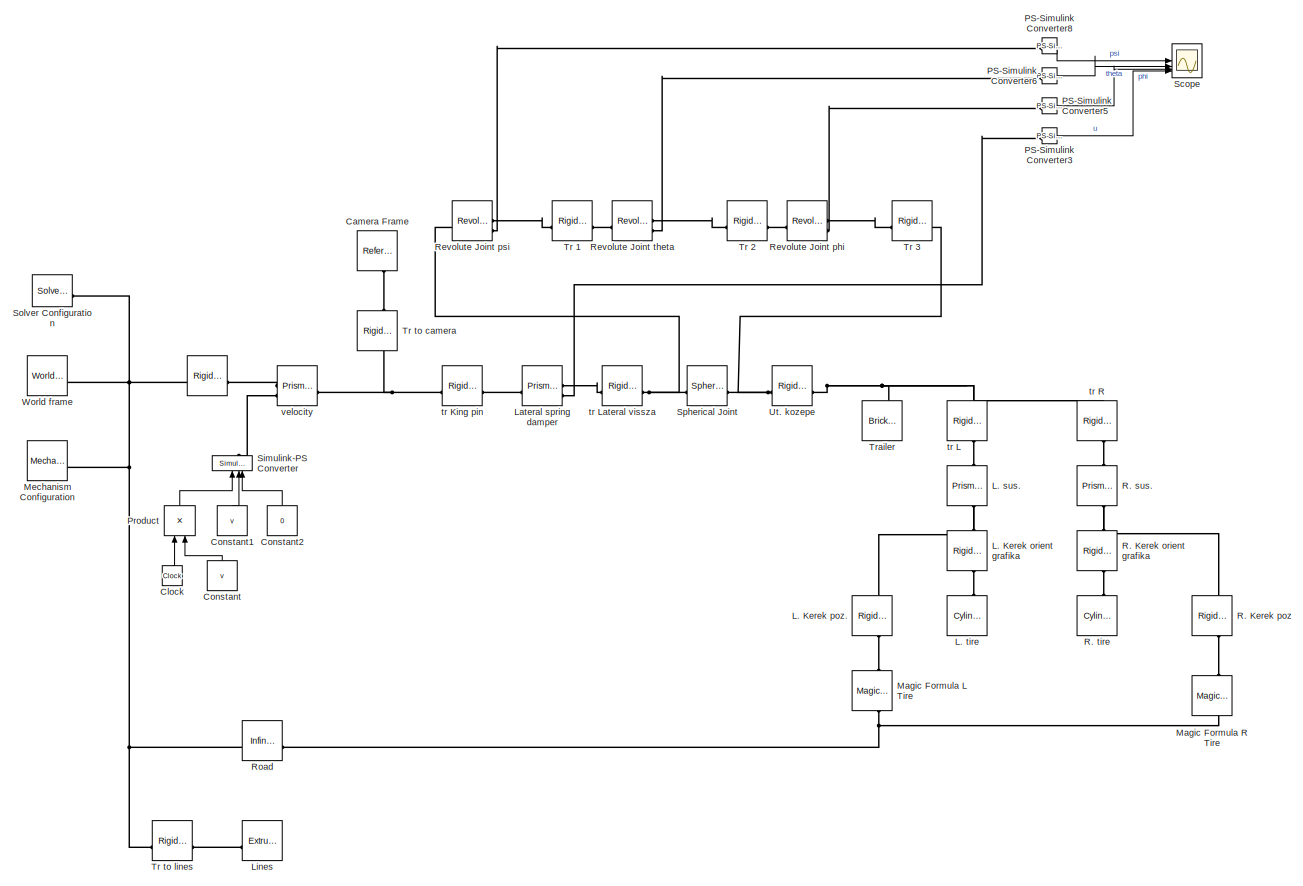
[diagram: root canvas - part 1/1, most of the canvas]
MODEL slx_6c4f18518ac2
KIND model
CONFIG AbsTol = 1e-3
CONFIG EnableMultiTasking = on
CONFIG FixedStep = auto
CONFIG MaxStep = 0.01
CONFIG MinStep = auto
CONFIG RelTol = 1e-3
CONFIG SampleTimeConstraint = Unconstrained
CONFIG SolverName = ode45
CONFIG StartTime = 0.0
CONFIG StopTime = 100
BLOCK [Reference]    REF=sm_lib/Frames and
Transforms/Rigid
Transform
  SourceBlock = sm_lib/Frames and\nTransforms/Rigid\nTransform
  SourceType = Rigid\nTransform
BLOCK [Reference] Camera Frame  REF=sm_lib/Frames and
Transforms/Reference
Frame
  NameLocation = left
  SourceBlock = sm_lib/Frames and\nTransforms/Reference\nFrame
  SourceType = Reference\nFrame
BLOCK [Clock] Clock
  NameLocation = right
BLOCK [Constant] Constant
  NameLocation = right
  Value = v
BLOCK [Constant] Constant1
  NameLocation = right
  Value = v
BLOCK [Constant] Constant2
  NameLocation = right
  Value = 0
BLOCK [Reference] L. Kerek orient grafika  REF=sm_lib/Frames and
Transforms/Rigid
Transform
  NameLocation = left
  SourceBlock = sm_lib/Frames and\nTransforms/Rigid\nTransform
  SourceType = Rigid\nTransform
BLOCK [Reference] L. Kerek poz.  REF=sm_lib/Frames and
Transforms/Rigid
Transform
  NameLocation = left
  SourceBlock = sm_lib/Frames and\nTransforms/Rigid\nTransform
  SourceType = Rigid\nTransform
BLOCK [Reference] L. sus.  REF=sm_lib/Joints/Prismatic
Joint
  NameLocation = right
  SourceBlock = sm_lib/Joints/Prismatic\nJoint
  SourceType = Prismatic\nJoint
BLOCK [Reference] L. tire  REF=sm_lib/Body Elements/Cylindrical Solid
  NameLocation = right
  SourceBlock = sm_lib/Body Elements/Cylindrical Solid
  SourceType = Cylindrical Solid
BLOCK [Reference] Lateral spring damper  REF=sm_lib/Joints/Prismatic
Joint
  SourceBlock = sm_lib/Joints/Prismatic\nJoint
  SourceType = Prismatic\nJoint
BLOCK [Reference] Lines  REF=sm_lib/Body Elements/Extruded Solid
  NameLocation = top
  SourceBlock = sm_lib/Body Elements/Extruded Solid
  SourceType = Extruded Solid
BLOCK [Reference] Magic Formula L Tire  REF=sm_lib/Forces and
Torques/Magic Formula Tire
Force and Torque
  NameLocation = right
  SourceBlock = sm_lib/Forces and\nTorques/Magic Formula Tire\nForce and Torque
  SourceType = Magic Formula Tire\nForce and Torque
BLOCK [Reference] Magic Formula R Tire  REF=sm_lib/Forces and
Torques/Magic Formula Tire
Force and Torque
  NameLocation = right
  SourceBlock = sm_lib/Forces and\nTorques/Magic Formula Tire\nForce and Torque
  SourceType = Magic Formula Tire\nForce and Torque
BLOCK [Reference] Mechanism Configuration  REF=sm_lib/Utilities/Mechanism
Configuration
  SourceBlock = sm_lib/Utilities/Mechanism\nConfiguration
  SourceType = Mechanism\nConfiguration
BLOCK [Reference] PS-Simulink Converter3  REF=nesl_utility/PS-Simulink
Converter
  SourceBlock = nesl_utility/PS-Simulink\nConverter
  SourceType = PS-Simulink\nConverter
BLOCK [Reference] PS-Simulink Converter5  REF=nesl_utility/PS-Simulink
Converter
  SourceBlock = nesl_utility/PS-Simulink\nConverter
  SourceType = PS-Simulink\nConverter
BLOCK [Reference] PS-Simulink Converter6  REF=nesl_utility/PS-Simulink
Converter
  SourceBlock = nesl_utility/PS-Simulink\nConverter
  SourceType = PS-Simulink\nConverter
BLOCK [Reference] PS-Simulink Converter8  REF=nesl_utility/PS-Simulink
Converter
  SourceBlock = nesl_utility/PS-Simulink\nConverter
  SourceType = PS-Simulink\nConverter
BLOCK [Product] Product
  NameLocation = right
BLOCK [Reference] R. Kerek orient grafika  REF=sm_lib/Frames and
Transforms/Rigid
Transform
  NameLocation = left
  SourceBlock = sm_lib/Frames and\nTransforms/Rigid\nTransform
  SourceType = Rigid\nTransform
BLOCK [Reference] R. Kerek poz  REF=sm_lib/Frames and
Transforms/Rigid
Transform
  NameLocation = left
  SourceBlock = sm_lib/Frames and\nTransforms/Rigid\nTransform
  SourceType = Rigid\nTransform
BLOCK [Reference] R. sus.  REF=sm_lib/Joints/Prismatic
Joint
  NameLocation = right
  SourceBlock = sm_lib/Joints/Prismatic\nJoint
  SourceType = Prismatic\nJoint
BLOCK [Reference] R. tire  REF=sm_lib/Body Elements/Cylindrical Solid
  NameLocation = right
  SourceBlock = sm_lib/Body Elements/Cylindrical Solid
  SourceType = Cylindrical Solid
BLOCK [Reference] Revolute Joint phi  REF=sm_lib/Joints/Revolute Joint
  SourceBlock = sm_lib/Joints/Revolute Joint
  SourceType = Revolute Joint
BLOCK [Reference] Revolute Joint psi  REF=sm_lib/Joints/Revolute Joint
  SourceBlock = sm_lib/Joints/Revolute Joint
  SourceType = Revolute Joint
BLOCK [Reference] Revolute Joint theta  REF=sm_lib/Joints/Revolute Joint
  SourceBlock = sm_lib/Joints/Revolute Joint
  SourceType = Revolute Joint
BLOCK [Reference] Road  REF=sm_lib/Curves and Surfaces/Infinite Plane
  SourceBlock = sm_lib/Curves and Surfaces/Infinite Plane
  SourceType = Infinite Plane
BLOCK [Scope] Scope
  Floating = off
  NumInputPorts = 4
  ScopeSpecificationString = Simulink.scopes.TimeScopeBlockCfg('CurrentConfiguration', extmgr.ConfigurationSet(extmgr.Configuration('Core','General UI',true,'FigureColor',[1 1 1]),extmgr.Configuration('Core','Source UI',true),extmgr.Configuration('Sources','WiredSimulink',true),extmgr.Configuration('Visuals','Time Domain',true,'TimeAxisLabels','All','PlotType','Line','SerializedDisplays',{struct('MinYLimReal','-0.00014','MaxY...<+4065ch>
BLOCK [Reference] Simulink-PS Converter  REF=nesl_utility/Simulink-PS
Converter
  NameLocation = right
  SourceBlock = nesl_utility/Simulink-PS\nConverter
  SourceType = Simulink-PS\nConverter
BLOCK [Reference] Solver Configuration  REF=nesl_utility/Solver
Configuration
  SourceBlock = nesl_utility/Solver\nConfiguration
  SourceType = Solver\nConfiguration
BLOCK [Reference] Spherical Joint  REF=sm_lib/Joints/Spherical
Joint
  SourceBlock = sm_lib/Joints/Spherical\nJoint
  SourceType = Spherical\nJoint
BLOCK [Reference] Tr 1  REF=sm_lib/Frames and
Transforms/Rigid
Transform
  SourceBlock = sm_lib/Frames and\nTransforms/Rigid\nTransform
  SourceType = Rigid\nTransform
BLOCK [Reference] Tr 2  REF=sm_lib/Frames and
Transforms/Rigid
Transform
  SourceBlock = sm_lib/Frames and\nTransforms/Rigid\nTransform
  SourceType = Rigid\nTransform
BLOCK [Reference] Tr 3  REF=sm_lib/Frames and
Transforms/Rigid
Transform
  SourceBlock = sm_lib/Frames and\nTransforms/Rigid\nTransform
  SourceType = Rigid\nTransform
BLOCK [Reference] Tr to camera  REF=sm_lib/Frames and
Transforms/Rigid
Transform
  NameLocation = right
  SourceBlock = sm_lib/Frames and\nTransforms/Rigid\nTransform
  SourceType = Rigid\nTransform
BLOCK [Reference] Tr to lines  REF=sm_lib/Frames and
Transforms/Rigid
Transform
  SourceBlock = sm_lib/Frames and\nTransforms/Rigid\nTransform
  SourceType = Rigid\nTransform
BLOCK [Reference] Trailer  REF=sm_lib/Body Elements/Brick Solid
  SourceBlock = sm_lib/Body Elements/Brick Solid
  SourceType = Brick Solid
BLOCK [Reference] Ut. kozepe  REF=sm_lib/Frames and
Transforms/Rigid
Transform
  SourceBlock = sm_lib/Frames and\nTransforms/Rigid\nTransform
  SourceType = Rigid\nTransform
BLOCK [Reference] World frame  REF=sm_lib/Frames and
Transforms/World Frame
  SourceBlock = sm_lib/Frames and\nTransforms/World Frame
  SourceType = World Frame
BLOCK [Reference] tr King pin  REF=sm_lib/Frames and
Transforms/Rigid
Transform
  SourceBlock = sm_lib/Frames and\nTransforms/Rigid\nTransform
  SourceType = Rigid\nTransform
BLOCK [Reference] tr L  REF=sm_lib/Frames and
Transforms/Rigid
Transform
  NameLocation = left
  SourceBlock = sm_lib/Frames and\nTransforms/Rigid\nTransform
  SourceType = Rigid\nTransform
BLOCK [Reference] tr Lateral vissza  REF=sm_lib/Frames and
Transforms/Rigid
Transform
  SourceBlock = sm_lib/Frames and\nTransforms/Rigid\nTransform
  SourceType = Rigid\nTransform
BLOCK [Reference] tr R  REF=sm_lib/Frames and
Transforms/Rigid
Transform
  NameLocation = left
  SourceBlock = sm_lib/Frames and\nTransforms/Rigid\nTransform
  SourceType = Rigid\nTransform
BLOCK [Reference] velocity  REF=sm_lib/Joints/Prismatic
Joint
  SourceBlock = sm_lib/Joints/Prismatic\nJoint
  SourceType = Prismatic\nJoint
LINE Clock:1 -> Product:1
LINE Constant1:1 -> Simulink-PS Converter:2
LINE Constant2:1 -> Simulink-PS Converter:3
LINE Constant:1 -> Product:2
LINE PS-Simulink Converter3:1 -> Scope:4
LINE PS-Simulink Converter5:1 -> Scope:3
LINE PS-Simulink Converter6:1 -> Scope:2
LINE PS-Simulink Converter8:1 -> Scope:1
LINE Product:1 -> Simulink-PS Converter:1
PNET net1:  :LConn1 -- Mechanism Configuration:RConn1 -- Road:LConn1 -- Solver Configuration:RConn1 -- Tr to lines:LConn1 -- World frame:RConn1
PLINE  :RConn1 -- velocity:LConn1
PLINE Camera Frame:RConn1 -- Tr to camera:RConn1
PNET net2: L. Kerek orient grafika:LConn1 -- L. Kerek poz.:LConn1 -- L. sus.:LConn1
PLINE L. Kerek orient grafika:RConn1 -- L. tire:RConn1
PLINE L. Kerek poz.:RConn1 -- Magic Formula L Tire:RConn1
PLINE L. sus.:RConn1 -- tr L:RConn1
PLINE Lateral spring damper:LConn1 -- tr King pin:RConn1
PLINE Lateral spring damper:RConn1 -- tr Lateral vissza:LConn1
PLINE Lateral spring damper:RConn2 -- PS-Simulink Converter3:LConn1
PLINE Lines:RConn1 -- Tr to lines:RConn1
PNET net3: Magic Formula L Tire:LConn1 -- Magic Formula R Tire:LConn1 -- Road:RConn1
PLINE Magic Formula R Tire:RConn1 -- R. Kerek poz:RConn1
PLINE PS-Simulink Converter5:LConn1 -- Revolute Joint phi:RConn2
PLINE PS-Simulink Converter6:LConn1 -- Revolute Joint theta:RConn2
PLINE PS-Simulink Converter8:LConn1 -- Revolute Joint psi:RConn2
PNET net4: R. Kerek orient grafika:LConn1 -- R. Kerek poz:LConn1 -- R. sus.:LConn1
PLINE R. Kerek orient grafika:RConn1 -- R. tire:RConn1
PLINE R. sus.:RConn1 -- tr R:RConn1
PLINE Revolute Joint phi:LConn1 -- Tr 2:RConn1
PLINE Revolute Joint phi:RConn1 -- Tr 3:LConn1
PNET net5: Revolute Joint psi:LConn1 -- Spherical Joint:LConn1 -- tr Lateral vissza:RConn1
PLINE Revolute Joint psi:RConn1 -- Tr 1:LConn1
PLINE Revolute Joint theta:LConn1 -- Tr 1:RConn1
PLINE Revolute Joint theta:RConn1 -- Tr 2:LConn1
PLINE Simulink-PS Converter:RConn1 -- velocity:LConn2
PNET net6: Spherical Joint:RConn1 -- Tr 3:RConn1 -- Ut. kozepe:LConn1
PNET net7: Tr to camera:LConn1 -- tr King pin:LConn1 -- velocity:RConn1
PNET net8: Trailer:RConn1 -- Ut. kozepe:RConn1 -- tr L:LConn1 -- tr R:LConn1
note: PNET lines group multi-terminal physical nets as a canonical sorted terminal list (undirected conserving connections); 2-terminal nets keep the pairwise PLINE form
